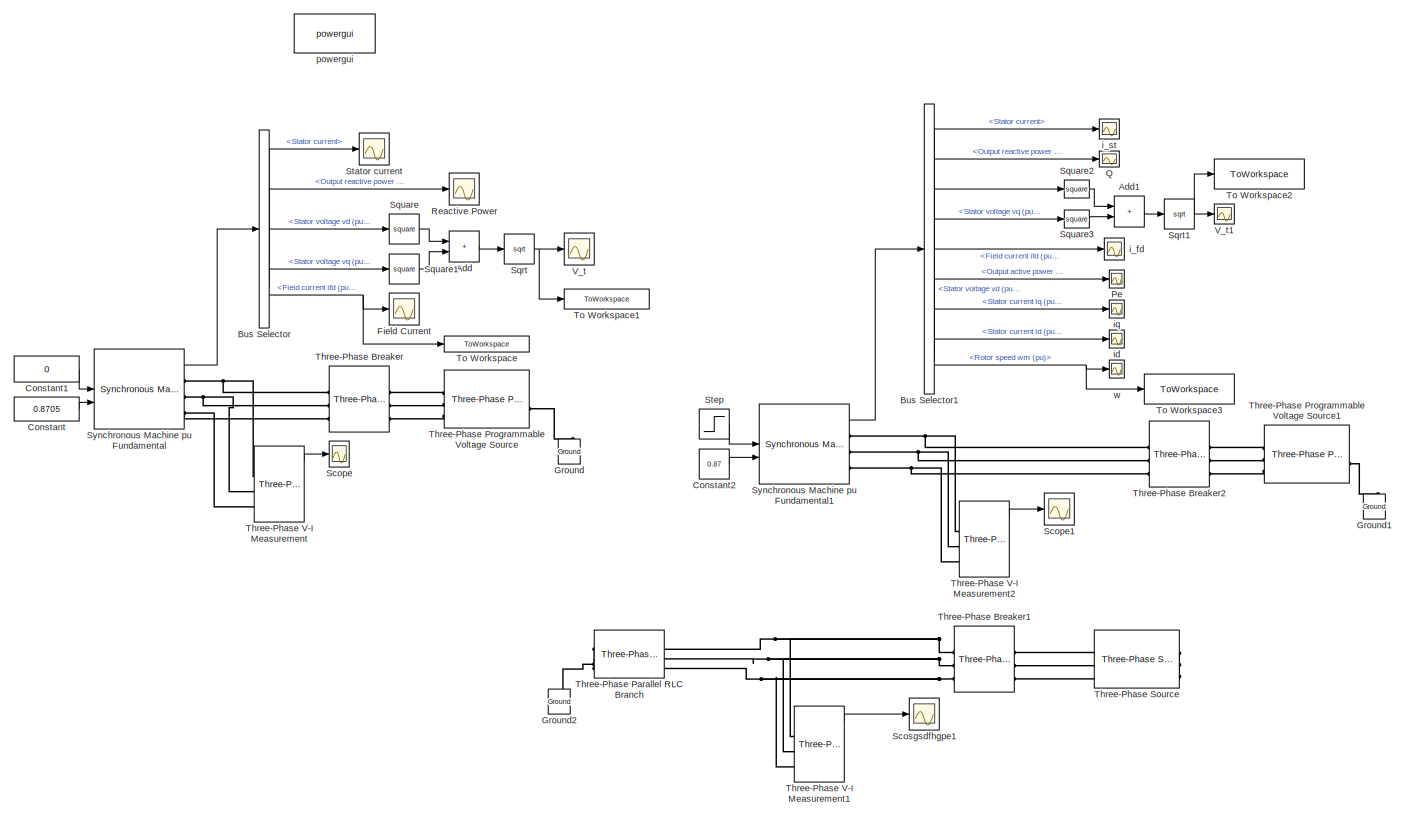
[diagram: root canvas - part 1/2, left side, full height]
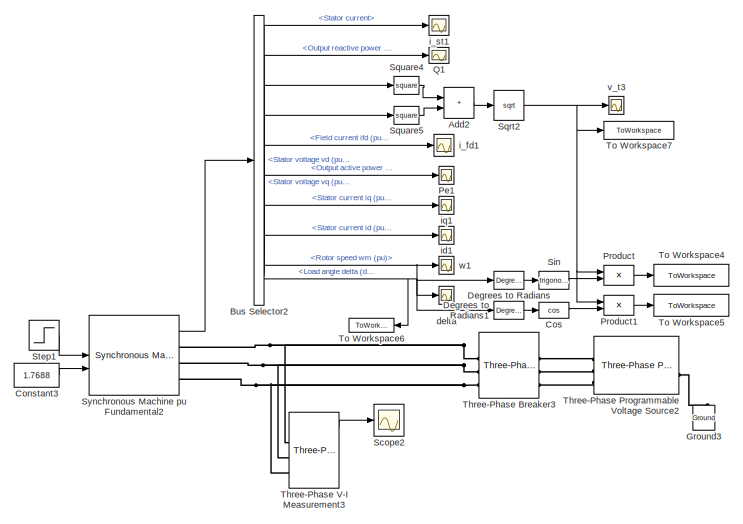
[diagram: root canvas - part 2/2, middle right region]
MODEL slx_2e14206b55f4
KIND model
CONFIG AbsTol = auto
CONFIG EnableMultiTasking = off
CONFIG FixedStep = auto
CONFIG MaxStep = 1e-4
CONFIG MinStep = auto
CONFIG RelTol = 1e-8
CONFIG SampleTimeConstraint = Unconstrained
CONFIG SolverName = VariableStepAuto
CONFIG StartTime = 0.0
CONFIG StopTime = 40
WORKSPACE source: mxarray member
WORKSPACE p_m = 0
WORKSPACE v_f = 0.8705
BLOCK [Sum] Add
  IconShape = rectangular
BLOCK [Sum] Add1
  IconShape = rectangular
BLOCK [Sum] Add2
  IconShape = rectangular
BLOCK [BusSelector] Bus Selector
  OutputSignals = Stator current,Output reactive power  Qeo (pu),dq0 components.Stator voltage  vd (pu),dq0 components.Stator voltage  vq (pu),dq0 components.Field current  ifd (pu)
BLOCK [BusSelector] Bus Selector1
  OutputSignals = Stator current,Output reactive power  Qeo (pu),dq0 components.Stator voltage  vd (pu),dq0 components.Stator voltage  vq (pu),dq0 components.Field current  ifd (pu),Output active power   Peo (pu),dq0 components.Stator current  iq (pu),dq0 components.Stator current  id (pu),Mechanical.Rotor speed  wm (pu)
BLOCK [BusSelector] Bus Selector2
  OutputSignals = Stator current,Output reactive power  Qeo (pu),dq0 components.Stator voltage  vd (pu),dq0 components.Stator voltage  vq (pu),dq0 components.Field current  ifd (pu),Output active power   Peo (pu),dq0 components.Stator current  iq (pu),dq0 components.Stator current  id (pu),Mechanical.Rotor speed  wm (pu),Load angle   delta  (deg)
BLOCK [Constant] Constant
  Value = 0.8705
BLOCK [Constant] Constant1
  Tag = p_m
  Value = 0
BLOCK [Constant] Constant2
  Value = 0.87
BLOCK [Constant] Constant3
  Value = 1.7688
BLOCK [Trigonometry] Cos
  Operator = cos
BLOCK [Reference] Degrees to Radians  REF=simulink_extras/Transformations/Degrees to
Radians
  SourceBlock = simulink_extras/Transformations/Degrees to\nRadians
  SourceType = DegreesToRadians
BLOCK [Reference] Degrees to Radians1  REF=simulink_extras/Transformations/Degrees to
Radians
  SourceBlock = simulink_extras/Transformations/Degrees to\nRadians
  SourceType = DegreesToRadians
BLOCK [Scope] Field Current
  ActiveDisplayYMaximum = 0.95670423972594421
  ActiveDisplayYMinimum = 0.95426093350087715
  DataLoggingVariableName = ScopeData4
  Floating = off
  GraphicalSettings = {"AxesScalingProperties":{"AlignXAxis":"Center","AlignYAxis":"Center","AutoScaleXAxisLimits":false,"AxesScaling":"Manual","AxesScalingNumUpdates":10,"ExpandOnly":true,"ScaleAxesLimitsAtStop":false,"XAxisDataRange":100,"YAxisDataRange":80},"DisplayProperties":{"ColorOrder":["auto","auto","auto","auto","auto","auto","auto","auto","auto","auto","auto","auto","auto","auto","auto","auto","auto","auto",...<+2042ch>  <repeated x3 — deduplicated; at blocks: Field Current, iq, iq1>
  MultipleDisplayCache = [{"MaxYLimMag":4.7811683232765558,"MaxYLimReal":0.95670423972594421,"MinYLimMag":0,"MinYLimReal":0.95426093350087715,"PlotAsMagnitudePhase":false,"ShowGrid":true,"ShowLegend":false,"Title":"%<SignalLabel>","YLabel":""}]
  NumInputPorts = 1
  ScopeFrameLocation = window
  WasSavedAsWebScope = on
  WindowPosition = [1921.000000,49.000000,1920.000000,1009.000000,]
BLOCK [Reference] Ground  REF=spsGroundLib/Ground
  LibrarySourceBlock = sps_lib/Utilities/Ground
  NameLocation = right
  SourceBlock = spsGroundLib/Ground
  SourceType = Ground
BLOCK [Reference] Ground1  REF=spsGroundLib/Ground
  LibrarySourceBlock = sps_lib/Utilities/Ground
  NameLocation = right
  SourceBlock = spsGroundLib/Ground
  SourceType = Ground
BLOCK [Reference] Ground2  REF=spsGroundLib/Ground
  LibrarySourceBlock = sps_lib/Utilities/Ground
  NameLocation = right
  SourceBlock = spsGroundLib/Ground
  SourceType = Ground
BLOCK [Reference] Ground3  REF=spsGroundLib/Ground
  LibrarySourceBlock = sps_lib/Utilities/Ground
  NameLocation = right
  SourceBlock = spsGroundLib/Ground
  SourceType = Ground
BLOCK [Scope] Pe
  ActiveDisplayYMaximum = 2375.0722359085885
  ActiveDisplayYMinimum = -266.63073278249573
  DataLoggingVariableName = ScopeData11
  Floating = off
  GraphicalSettings = {"Style":{"BackgroundColor":[0.12941176470588237,0.12941176470588237,0.12941176470588237],"AxesColor":[0.07058823529411765,0.07058823529411765,0.07058823529411765],"LabelsColor":[0.8509803921568627,0.8509803921568627,0.8509803921568627],"PreserveColors":false,"Visible":[true],"LineStyle":["-"],"LineWidth":[1.5],"BarWidth":[0.9],"LineColor":["auto"],"LineFaceAlpha":[1],"LineEdgeAlpha":[1],"Marker":...<+2047ch>
  MultipleDisplayCache = [{"MaxYLimMag":2375.0722359085885,"MaxYLimReal":2375.0722359085885,"MinYLimMag":0,"MinYLimReal":-266.63073278249573,"PlotAsMagnitudePhase":false,"ShowGrid":true,"ShowLegend":false,"Title":"%<SignalLabel>","YLabel":""}]
  NameLocation = right
  NumInputPorts = 1
  ScopeFrameLocation = window
  WasSavedAsWebScope = on
  WindowPosition = [-38.000000,34.000000,1600.000000,829.000000,]
BLOCK [Scope] Pe1
  ActiveDisplayYMaximum = 2375.0722359085885
  ActiveDisplayYMinimum = -266.63073278249573
  DataLoggingVariableName = ScopeData14
  Floating = off
  GraphicalSettings = {"Style":{"BackgroundColor":[0.12941176470588237,0.12941176470588237,0.12941176470588237],"AxesColor":[0.07058823529411765,0.07058823529411765,0.07058823529411765],"LabelsColor":[0.8509803921568627,0.8509803921568627,0.8509803921568627],"PreserveColors":false,"Visible":[true],"LineStyle":["-"],"LineWidth":[1.5],"BarWidth":[0.9],"LineColor":["auto"],"LineFaceAlpha":[1],"LineEdgeAlpha":[1],"Marker":...<+2047ch>
  MultipleDisplayCache = [{"MaxYLimMag":2375.0722359085885,"MaxYLimReal":2375.0722359085885,"MinYLimMag":0,"MinYLimReal":-266.63073278249573,"PlotAsMagnitudePhase":false,"ShowGrid":true,"ShowLegend":false,"Title":"%<SignalLabel>","YLabel":""}]
  NameLocation = right
  NumInputPorts = 1
  ScopeFrameLocation = window
  WasSavedAsWebScope = on
  WindowPosition = [-38.000000,34.000000,1600.000000,829.000000,]
BLOCK [Product] Product
BLOCK [Product] Product1
BLOCK [Scope] Q
  ActiveDisplayYMaximum = -0.29699694200105431
  ActiveDisplayYMinimum = -0.29769400843785104
  DataLoggingVariableName = ScopeData7
  Floating = off
  GraphicalSettings = {"AxesScalingProperties":{"AlignXAxis":"Center","AlignYAxis":"Center","AutoScaleXAxisLimits":false,"AxesScaling":"Manual","AxesScalingNumUpdates":10,"ExpandOnly":true,"ScaleAxesLimitsAtStop":false,"XAxisDataRange":100,"YAxisDataRange":80},"DisplayProperties":{"ColorOrder":["auto","auto","auto","auto","auto","auto","auto","auto","auto","auto","auto","auto","auto","auto","auto","auto","auto","auto",...<+2064ch>
  MultipleDisplayCache = [{"MaxYLimMag":9.7936959652295776,"MaxYLimReal":-0.29699694200105431,"MinYLimMag":0,"MinYLimReal":-0.29769400843785104,"PlotAsMagnitudePhase":false,"ShowGrid":true,"ShowLegend":false,"Title":"%<SignalLabel>","YLabel":""}]
  NameLocation = right
  NumInputPorts = 1
  ScopeFrameLocation = window
  WasSavedAsWebScope = on
  WindowPosition = [1.000000,49.000000,1600.000000,829.000000,]
BLOCK [Scope] Q1
  ActiveDisplayYMaximum = -0.29699694200105431
  ActiveDisplayYMinimum = -0.29769400843785104
  DataLoggingVariableName = ScopeData15
  Floating = off
  GraphicalSettings = {"AxesScalingProperties":{"AlignXAxis":"Center","AlignYAxis":"Center","AutoScaleXAxisLimits":false,"AxesScaling":"Manual","AxesScalingNumUpdates":10,"ExpandOnly":true,"ScaleAxesLimitsAtStop":false,"XAxisDataRange":100,"YAxisDataRange":80},"DisplayProperties":{"ColorOrder":["auto","auto","auto","auto","auto","auto","auto","auto","auto","auto","auto","auto","auto","auto","auto","auto","auto","auto",...<+2064ch>
  MultipleDisplayCache = [{"MaxYLimMag":9.7936959652295776,"MaxYLimReal":-0.29699694200105431,"MinYLimMag":0,"MinYLimReal":-0.29769400843785104,"PlotAsMagnitudePhase":false,"ShowGrid":true,"ShowLegend":false,"Title":"%<SignalLabel>","YLabel":""}]
  NameLocation = right
  NumInputPorts = 1
  ScopeFrameLocation = window
  WasSavedAsWebScope = on
  WindowPosition = [1.000000,49.000000,1600.000000,829.000000,]
BLOCK [Scope] Reactive Power
  ActiveDisplayYMaximum = -0.12338999766576593
  ActiveDisplayYMinimum = -0.1233902909232272
  DataLoggingVariableName = ScopeData3
  Floating = off
  GraphicalSettings = {"AxesScalingProperties":{"AlignXAxis":"Center","AlignYAxis":"Center","AutoScaleXAxisLimits":false,"AxesScaling":"Manual","AxesScalingNumUpdates":10,"ExpandOnly":true,"ScaleAxesLimitsAtStop":false,"XAxisDataRange":100,"YAxisDataRange":80},"DisplayProperties":{"ColorOrder":["auto","auto","auto","auto","auto","auto","auto","auto","auto","auto","auto","auto","auto","auto","auto","auto","auto","auto",...<+2060ch>
  MultipleDisplayCache = [{"MaxYLimMag":9.48701347407148,"MaxYLimReal":-0.12338999766576593,"MinYLimMag":0,"MinYLimReal":-0.1233902909232272,"PlotAsMagnitudePhase":false,"ShowGrid":true,"ShowLegend":false,"Title":"%<SignalLabel>","YLabel":""}]
  NumInputPorts = 1
  ScopeFrameLocation = window
  WasSavedAsWebScope = on
  WindowPosition = [0.000000,36.000000,1920.000000,1009.000000,]
BLOCK [Scope] Scope
  ActiveDisplayYMaximum = 1.2500642972287648
  ActiveDisplayYMinimum = -1.2502044389104019
  DataLoggingVariableName = ScopeData5
  Floating = off
  GraphicalSettings = {"Style":{"BackgroundColor":[0.12941176470588237,0.12941176470588237,0.12941176470588237],"AxesColor":[0.07058823529411765,0.07058823529411765,0.07058823529411765],"LabelsColor":[0.8509803921568627,0.8509803921568627,0.8509803921568627],"PreserveColors":false,"Visible":[true,true,true],"LineStyle":["-","-","-"],"LineWidth":[1.5,1.5,1.5],"BarWidth":[0.9,0.9,0.9],"LineColor":["auto","auto","auto"],"...<+2358ch>
  MultipleDisplayCache = [{"MaxYLimMag":1.2502044389104019,"MaxYLimReal":1.2500642972287648,"MinYLimMag":0,"MinYLimReal":-1.2502044389104019,"PlotAsMagnitudePhase":false,"ShowGrid":true,"ShowLegend":false,"Title":"%<SignalLabel>","YLabel":""}]
  NumInputPorts = 1
  ScopeFrameLocation = window
  WasSavedAsWebScope = on
  WindowPosition = [0.000000,36.000000,1920.000000,1009.000000,]
BLOCK [Scope] Scope1
  ActiveDisplayYMaximum = 0.99048701496862079
  ActiveDisplayYMinimum = -1.0713781429903637
  DataLoggingVariableName = ScopeData8
  Floating = off
  GraphicalSettings = {"Style":{"BackgroundColor":[0.12941176470588237,0.12941176470588237,0.12941176470588237],"AxesColor":[0.07058823529411765,0.07058823529411765,0.07058823529411765],"LabelsColor":[0.8509803921568627,0.8509803921568627,0.8509803921568627],"PreserveColors":false,"Visible":[true,true,true],"LineStyle":["-","-","-"],"LineWidth":[1.5,1.5,1.5],"BarWidth":[0.9,0.9,0.9],"LineColor":["auto","auto","auto"],"...<+2360ch>
  MultipleDisplayCache = [{"MaxYLimMag":1.9161922583158995,"MaxYLimReal":0.99048701496862079,"MinYLimMag":0,"MinYLimReal":-1.0713781429903637,"PlotAsMagnitudePhase":false,"ShowGrid":true,"ShowLegend":false,"Title":"%<SignalLabel>","YLabel":""}]
  NumInputPorts = 1
  ScopeFrameLocation = window
  WasSavedAsWebScope = on
  WindowPosition = [1921.000000,49.000000,1920.000000,1009.000000,]
BLOCK [Scope] Scope2
  ActiveDisplayYMaximum = 0.99048701496862079
  ActiveDisplayYMinimum = -1.0713781429903637
  DataLoggingVariableName = ScopeData17
  Floating = off
  GraphicalSettings = {"Style":{"BackgroundColor":[0.12941176470588237,0.12941176470588237,0.12941176470588237],"AxesColor":[0.07058823529411765,0.07058823529411765,0.07058823529411765],"LabelsColor":[0.8509803921568627,0.8509803921568627,0.8509803921568627],"PreserveColors":false,"Visible":[true,true,true],"LineStyle":["-","-","-"],"LineWidth":[1.5,1.5,1.5],"BarWidth":[0.9,0.9,0.9],"LineColor":["auto","auto","auto"],"...<+2360ch>
  MultipleDisplayCache = [{"MaxYLimMag":1.9161922583158995,"MaxYLimReal":0.99048701496862079,"MinYLimMag":0,"MinYLimReal":-1.0713781429903637,"PlotAsMagnitudePhase":false,"ShowGrid":true,"ShowLegend":false,"Title":"%<SignalLabel>","YLabel":""}]
  NumInputPorts = 1
  ScopeFrameLocation = window
  WasSavedAsWebScope = on
  WindowPosition = [1921.000000,49.000000,1920.000000,1009.000000,]
BLOCK [Scope] Scosgsdfhgpe1
  ActiveDisplayYMaximum = 1.1869510329971333
  ActiveDisplayYMinimum = -1.0092853712369843
  DataLoggingVariableName = ScopeData2
  Floating = off
  GraphicalSettings = {"Style":{"BackgroundColor":[0.12941176470588237,0.12941176470588237,0.12941176470588237],"AxesColor":[0.07058823529411765,0.07058823529411765,0.07058823529411765],"LabelsColor":[0.8509803921568627,0.8509803921568627,0.8509803921568627],"PreserveColors":false,"Visible":[true,true,true],"LineStyle":["-","-","-"],"LineWidth":[1.5,1.5,1.5],"BarWidth":[0.9,0.9,0.9],"LineColor":["auto","auto","auto"],"...<+2334ch>
  MultipleDisplayCache = [{"MaxYLimMag":10,"MaxYLimReal":1.1869510329971333,"MinYLimMag":0,"MinYLimReal":-1.0092853712369843,"PlotAsMagnitudePhase":false,"ShowGrid":true,"ShowLegend":false,"Title":"%<SignalLabel>","YLabel":""}]
  NumInputPorts = 1
  ScopeFrameLocation = window
  WasSavedAsWebScope = on
  WindowPosition = [680.000000,330.000000,560.000000,420.000000,]
BLOCK [Trigonometry] Sin
BLOCK [Sqrt] Sqrt
BLOCK [Sqrt] Sqrt1
BLOCK [Sqrt] Sqrt2
BLOCK [Math] Square
  Operator = square
BLOCK [Math] Square1
  Operator = square
BLOCK [Math] Square2
  Operator = square
BLOCK [Math] Square3
  Operator = square
BLOCK [Math] Square4
  Operator = square
BLOCK [Math] Square5
  Operator = square
BLOCK [Scope] Stator current
  ActiveDisplayYMaximum = 0.12350538497944295
  ActiveDisplayYMinimum = 0.12291954925426332
  Floating = off
  GraphicalSettings = {"AxesScalingProperties":{"AlignXAxis":"Center","AlignYAxis":"Center","AutoScaleXAxisLimits":false,"AxesScaling":"Manual","AxesScalingNumUpdates":10,"ExpandOnly":true,"ScaleAxesLimitsAtStop":false,"XAxisDataRange":100,"YAxisDataRange":80},"DisplayProperties":{"ColorOrder":["auto","auto","auto","auto","auto","auto","auto","auto","auto","auto","auto","auto","auto","auto","auto","auto","auto","auto",...<+2306ch>
  MultipleDisplayCache = [{"MaxYLimMag":13.411540514353046,"MaxYLimReal":0.12350538497944295,"MinYLimMag":0,"MinYLimReal":0.12291954925426332,"PlotAsMagnitudePhase":false,"ShowGrid":true,"ShowLegend":false,"Title":"%<SignalLabel>","YLabel":""}]
  NumInputPorts = 1
  ScopeFrameLocation = window
  WasSavedAsWebScope = on
  WindowPosition = [0.000000,36.000000,1920.000000,1009.000000,]
BLOCK [Step] Step
  After = 0
  Before = 0.6249
  SampleTime = 0
  Time = 25
BLOCK [Step] Step1
  After = 0
  Before = 0.8437
  SampleTime = 0
  Time = 25
BLOCK [Reference] Synchronous Machine pu Fundamental  REF=spsSynchronousMachinepuFundamentalLib/Synchronous Machine
pu Fundamental
  LibrarySourceBlock = sps_lib/Electrical Machines/Synchronous Machine\npu Fundamental
  SourceBlock = spsSynchronousMachinepuFundamentalLib/Synchronous Machine\npu Fundamental
  SourceType = Synchronous Machine
BLOCK [Reference] Synchronous Machine pu Fundamental1  REF=spsSynchronousMachinepuFundamentalLib/Synchronous Machine
pu Fundamental
  LibrarySourceBlock = sps_lib/Electrical Machines/Synchronous Machine\npu Fundamental
  SourceBlock = spsSynchronousMachinepuFundamentalLib/Synchronous Machine\npu Fundamental
  SourceType = Synchronous Machine
BLOCK [Reference] Synchronous Machine pu Fundamental2  REF=spsSynchronousMachinepuFundamentalLib/Synchronous Machine
pu Fundamental
  LibrarySourceBlock = sps_lib/Electrical Machines/Synchronous Machine\npu Fundamental
  SourceBlock = spsSynchronousMachinepuFundamentalLib/Synchronous Machine\npu Fundamental
  SourceType = Synchronous Machine
BLOCK [Reference] Three-Phase Breaker  REF=spsThreePhaseBreakerLib/Three-Phase Breaker
  LibrarySourceBlock = sps_lib/Power Grid Elements/Three-Phase Breaker
  SourceBlock = spsThreePhaseBreakerLib/Three-Phase Breaker
  SourceType = Three-Phase Breaker
BLOCK [Reference] Three-Phase Breaker1  REF=spsThreePhaseBreakerLib/Three-Phase Breaker
  LibrarySourceBlock = sps_lib/Power Grid Elements/Three-Phase Breaker
  SourceBlock = spsThreePhaseBreakerLib/Three-Phase Breaker
  SourceType = Three-Phase Breaker
BLOCK [Reference] Three-Phase Breaker2  REF=spsThreePhaseBreakerLib/Three-Phase Breaker
  LibrarySourceBlock = sps_lib/Power Grid Elements/Three-Phase Breaker
  SourceBlock = spsThreePhaseBreakerLib/Three-Phase Breaker
  SourceType = Three-Phase Breaker
BLOCK [Reference] Three-Phase Breaker3  REF=spsThreePhaseBreakerLib/Three-Phase Breaker
  LibrarySourceBlock = sps_lib/Power Grid Elements/Three-Phase Breaker
  SourceBlock = spsThreePhaseBreakerLib/Three-Phase Breaker
  SourceType = Three-Phase Breaker
BLOCK [Reference] Three-Phase Parallel RLC Branch  REF=spsThreePhaseParallelRLCBranchLib/Three-Phase
Parallel RLC Branch
  AttributesFormatString = \n
  LibrarySourceBlock = sps_lib/Passives/Three-Phase\nParallel RLC Branch
  SourceBlock = spsThreePhaseParallelRLCBranchLib/Three-Phase\nParallel RLC Branch
  SourceType = Three-Phase Parallel RLC Branch
BLOCK [Reference] Three-Phase Programmable Voltage Source  REF=spsThreePhaseProgrammableVoltageSourceLib/Three-Phase
Programmable
Voltage Source
  LibrarySourceBlock = sps_lib/Sources/Three-Phase\nProgrammable\nVoltage Source
  SourceBlock = spsThreePhaseProgrammableVoltageSourceLib/Three-Phase\nProgrammable\nVoltage Source
  SourceType = Three-Phase Programmable Voltage Source
BLOCK [Reference] Three-Phase Programmable Voltage Source1  REF=spsThreePhaseProgrammableVoltageSourceLib/Three-Phase
Programmable
Voltage Source
  LibrarySourceBlock = sps_lib/Sources/Three-Phase\nProgrammable\nVoltage Source
  SourceBlock = spsThreePhaseProgrammableVoltageSourceLib/Three-Phase\nProgrammable\nVoltage Source
  SourceType = Three-Phase Programmable Voltage Source
BLOCK [Reference] Three-Phase Programmable Voltage Source2  REF=spsThreePhaseProgrammableVoltageSourceLib/Three-Phase
Programmable
Voltage Source
  LibrarySourceBlock = sps_lib/Sources/Three-Phase\nProgrammable\nVoltage Source
  SourceBlock = spsThreePhaseProgrammableVoltageSourceLib/Three-Phase\nProgrammable\nVoltage Source
  SourceType = Three-Phase Programmable Voltage Source
BLOCK [Reference] Three-Phase Source  REF=spsThreePhaseSourceLib/Three-Phase Source
  LibrarySourceBlock = sps_lib/Sources/Three-Phase Source
  NameLocation = top
  SourceBlock = spsThreePhaseSourceLib/Three-Phase Source
  SourceType = Three-Phase Source
BLOCK [Reference] Three-Phase V-I Measurement  REF=spsThreePhaseVIMeasurementLib/Three-Phase
V-I Measurement
  LibrarySourceBlock = sps_lib/Sensors and Measurements/Three-Phase\nV-I Measurement
  SourceBlock = spsThreePhaseVIMeasurementLib/Three-Phase\nV-I Measurement
  SourceType = Three-Phase VI Measurement
BLOCK [Reference] Three-Phase V-I Measurement1  REF=spsThreePhaseVIMeasurementLib/Three-Phase
V-I Measurement
  LibrarySourceBlock = sps_lib/Sensors and Measurements/Three-Phase\nV-I Measurement
  SourceBlock = spsThreePhaseVIMeasurementLib/Three-Phase\nV-I Measurement
  SourceType = Three-Phase VI Measurement
BLOCK [Reference] Three-Phase V-I Measurement2  REF=spsThreePhaseVIMeasurementLib/Three-Phase
V-I Measurement
  LibrarySourceBlock = sps_lib/Sensors and Measurements/Three-Phase\nV-I Measurement
  SourceBlock = spsThreePhaseVIMeasurementLib/Three-Phase\nV-I Measurement
  SourceType = Three-Phase VI Measurement
BLOCK [Reference] Three-Phase V-I Measurement3  REF=spsThreePhaseVIMeasurementLib/Three-Phase
V-I Measurement
  LibrarySourceBlock = sps_lib/Sensors and Measurements/Three-Phase\nV-I Measurement
  SourceBlock = spsThreePhaseVIMeasurementLib/Three-Phase\nV-I Measurement
  SourceType = Three-Phase VI Measurement
BLOCK [ToWorkspace] To Workspace
  FixptAsFi = on
  MaxDataPoints = inf
  SampleTime = -1
  SaveFormat = Timeseries
  VariableName = i_fd
BLOCK [ToWorkspace] To Workspace1
  FixptAsFi = on
  MaxDataPoints = inf
  SampleTime = -1
  SaveFormat = Timeseries
  VariableName = v_t
BLOCK [ToWorkspace] To Workspace2
  FixptAsFi = on
  MaxDataPoints = inf
  SampleTime = -1
  SaveFormat = Timeseries
  VariableName = v_tq
BLOCK [ToWorkspace] To Workspace3
  FixptAsFi = on
  MaxDataPoints = inf
  SampleTime = -1
  SaveFormat = Timeseries
  VariableName = w
BLOCK [ToWorkspace] To Workspace4
  FixptAsFi = on
  MaxDataPoints = inf
  SampleTime = -1
  SaveFormat = Timeseries
  VariableName = vt_sen
BLOCK [ToWorkspace] To Workspace5
  FixptAsFi = on
  MaxDataPoints = inf
  SampleTime = -1
  SaveFormat = Timeseries
  VariableName = vt_cos
BLOCK [ToWorkspace] To Workspace6
  FixptAsFi = on
  MaxDataPoints = inf
  SampleTime = -1
  SaveFormat = Timeseries
  VariableName = delta
BLOCK [ToWorkspace] To Workspace7
  FixptAsFi = on
  MaxDataPoints = inf
  SampleTime = -1
  SaveFormat = Timeseries
  VariableName = vt_3
BLOCK [Scope] V_t
  ActiveDisplayYMaximum = 0.99738883556627056
  ActiveDisplayYMinimum = 0.96319114292580066
  DataLoggingVariableName = ScopeData1
  Floating = off
  GraphicalSettings = {"AxesScalingProperties":{"AlignXAxis":"Center","AlignYAxis":"Center","AutoScaleXAxisLimits":false,"AxesScaling":"Manual","AxesScalingNumUpdates":10,"ExpandOnly":true,"ScaleAxesLimitsAtStop":false,"XAxisDataRange":100,"YAxisDataRange":80},"DisplayProperties":{"ColorOrder":["auto","auto","auto","auto","auto","auto","auto","auto","auto","auto","auto","auto","auto","auto","auto","auto","auto","auto",...<+2036ch>
  MultipleDisplayCache = [{"MaxYLimMag":1.0326951871301133,"MaxYLimReal":0.99738883556627056,"MinYLimMag":0.70954147055033534,"MinYLimReal":0.96319114292580066,"PlotAsMagnitudePhase":false,"ShowGrid":true,"ShowLegend":false,"Title":"%<SignalLabel>","YLabel":""}]
  NumInputPorts = 1
  ScopeFrameLocation = window
  WasSavedAsWebScope = on
  WindowPosition = [1.000000,49.000000,1600.000000,829.000000,]
BLOCK [Scope] V_t1
  ActiveDisplayYMaximum = 1.0050082982054707
  ActiveDisplayYMinimum = 0.801437980897443
  DataLoggingVariableName = ScopeData10
  Floating = off
  GraphicalSettings = {"Style":{"BackgroundColor":[0.12941176470588237,0.12941176470588237,0.12941176470588237],"AxesColor":[0.07058823529411765,0.07058823529411765,0.07058823529411765],"LabelsColor":[0.8509803921568627,0.8509803921568627,0.8509803921568627],"PreserveColors":false,"Visible":[true],"LineStyle":["-"],"LineWidth":[1.5],"BarWidth":[0.9],"LineColor":["auto"],"LineFaceAlpha":[1],"LineEdgeAlpha":[1],"Marker":...<+1991ch>
  MultipleDisplayCache = [{"MaxYLimMag":18.139768905804917,"MaxYLimReal":1.0050082982054707,"MinYLimMag":0,"MinYLimReal":0.801437980897443,"PlotAsMagnitudePhase":false,"ShowGrid":true,"ShowLegend":false,"Title":"%<SignalLabel>","YLabel":""}]
  NameLocation = right
  NumInputPorts = 1
  ScopeFrameLocation = window
  WasSavedAsWebScope = on
  WindowPosition = [-1919.000000,316.000000,1920.000000,1009.000000,]
BLOCK [Scope] delta
  ActiveDisplayYMaximum = 22.113426742657516
  ActiveDisplayYMinimum = -4.0306303814893027
  DataLoggingVariableName = ScopeData18
  Floating = off
  GraphicalSettings = {"Style":{"BackgroundColor":[0.12941176470588237,0.12941176470588237,0.12941176470588237],"AxesColor":[0.07058823529411765,0.07058823529411765,0.07058823529411765],"LabelsColor":[0.8509803921568627,0.8509803921568627,0.8509803921568627],"PreserveColors":false,"Visible":[true],"LineStyle":["-"],"LineWidth":[1.5],"BarWidth":[0.9],"LineColor":["auto"],"LineFaceAlpha":[1],"LineEdgeAlpha":[1],"Marker":...<+2035ch>
  MultipleDisplayCache = [{"MaxYLimMag":111.7988621787143,"MaxYLimReal":22.113426742657516,"MinYLimMag":0,"MinYLimReal":-4.0306303814893027,"PlotAsMagnitudePhase":false,"ShowGrid":true,"ShowLegend":false,"Title":"%<SignalLabel>","YLabel":""}]
  NameLocation = right
  NumInputPorts = 1
  ScopeFrameLocation = window
  WasSavedAsWebScope = on
  WindowPosition = [-1918.000000,426.000000,1600.000000,429.000000,]
BLOCK [Scope] i_fd
  ActiveDisplayYMaximum = 1.1986921425905557
  ActiveDisplayYMinimum = 0.486166253546517
  DataLoggingVariableName = ScopeData6
  Floating = off
  GraphicalSettings = {"AxesScalingProperties":{"AlignXAxis":"Center","AlignYAxis":"Center","AutoScaleXAxisLimits":false,"AxesScaling":"Manual","AxesScalingNumUpdates":10,"ExpandOnly":true,"ScaleAxesLimitsAtStop":false,"XAxisDataRange":100,"YAxisDataRange":80},"DisplayProperties":{"ColorOrder":["auto","auto","auto","auto","auto","auto","auto","auto","auto","auto","auto","auto","auto","auto","auto","auto","auto","auto",...<+2080ch>
  MultipleDisplayCache = [{"MaxYLimMag":4.7047719140770932,"MaxYLimReal":1.1986921425905557,"MinYLimMag":0,"MinYLimReal":0.486166253546517,"PlotAsMagnitudePhase":false,"ShowGrid":true,"ShowLegend":false,"Title":"%<SignalLabel>","YLabel":""}]
  NameLocation = right
  NumInputPorts = 1
  ScopeFrameLocation = window
  WasSavedAsWebScope = on
  WindowPosition = [1921.000000,49.000000,1920.000000,1009.000000,]
BLOCK [Scope] i_fd1
  ActiveDisplayYMaximum = 1.1986921425905557
  ActiveDisplayYMinimum = 0.486166253546517
  DataLoggingVariableName = ScopeData19
  Floating = off
  GraphicalSettings = {"AxesScalingProperties":{"AlignXAxis":"Center","AlignYAxis":"Center","AutoScaleXAxisLimits":false,"AxesScaling":"Manual","AxesScalingNumUpdates":10,"ExpandOnly":true,"ScaleAxesLimitsAtStop":false,"XAxisDataRange":100,"YAxisDataRange":80},"DisplayProperties":{"ColorOrder":["auto","auto","auto","auto","auto","auto","auto","auto","auto","auto","auto","auto","auto","auto","auto","auto","auto","auto",...<+2080ch>
  MultipleDisplayCache = [{"MaxYLimMag":4.7047719140770932,"MaxYLimReal":1.1986921425905557,"MinYLimMag":0,"MinYLimReal":0.486166253546517,"PlotAsMagnitudePhase":false,"ShowGrid":true,"ShowLegend":false,"Title":"%<SignalLabel>","YLabel":""}]
  NameLocation = right
  NumInputPorts = 1
  ScopeFrameLocation = window
  WasSavedAsWebScope = on
  WindowPosition = [1921.000000,49.000000,1920.000000,1009.000000,]
BLOCK [Scope] i_st
  ActiveDisplayYMaximum = 0.12575316014958465
  ActiveDisplayYMinimum = 0.11664480033906652
  DataLoggingVariableName = ScopeData9
  Floating = off
  GraphicalSettings = {"AxesScalingProperties":{"AlignXAxis":"Center","AlignYAxis":"Center","AutoScaleXAxisLimits":false,"AxesScaling":"Manual","AxesScalingNumUpdates":10,"ExpandOnly":true,"ScaleAxesLimitsAtStop":false,"XAxisDataRange":100,"YAxisDataRange":80},"DisplayProperties":{"ColorOrder":["auto","auto","auto","auto","auto","auto","auto","auto","auto","auto","auto","auto","auto","auto","auto","auto","auto","auto",...<+2304ch>
  MultipleDisplayCache = [{"MaxYLimMag":13.381170707280678,"MaxYLimReal":0.12575316014958465,"MinYLimMag":0,"MinYLimReal":0.11664480033906652,"PlotAsMagnitudePhase":false,"ShowGrid":true,"ShowLegend":false,"Title":"%<SignalLabel>","YLabel":""}]
  NameLocation = right
  NumInputPorts = 1
  ScopeFrameLocation = window
  WasSavedAsWebScope = on
  WindowPosition = [1921.000000,49.000000,1920.000000,1009.000000,]
BLOCK [Scope] i_st1
  ActiveDisplayYMaximum = 0.12575316014958465
  ActiveDisplayYMinimum = 0.11664480033906652
  DataLoggingVariableName = ScopeData20
  Floating = off
  GraphicalSettings = {"AxesScalingProperties":{"AlignXAxis":"Center","AlignYAxis":"Center","AutoScaleXAxisLimits":false,"AxesScaling":"Manual","AxesScalingNumUpdates":10,"ExpandOnly":true,"ScaleAxesLimitsAtStop":false,"XAxisDataRange":100,"YAxisDataRange":80},"DisplayProperties":{"ColorOrder":["auto","auto","auto","auto","auto","auto","auto","auto","auto","auto","auto","auto","auto","auto","auto","auto","auto","auto",...<+2304ch>
  MultipleDisplayCache = [{"MaxYLimMag":13.381170707280678,"MaxYLimReal":0.12575316014958465,"MinYLimMag":0,"MinYLimReal":0.11664480033906652,"PlotAsMagnitudePhase":false,"ShowGrid":true,"ShowLegend":false,"Title":"%<SignalLabel>","YLabel":""}]
  NameLocation = right
  NumInputPorts = 1
  ScopeFrameLocation = window
  WasSavedAsWebScope = on
  WindowPosition = [1921.000000,49.000000,1920.000000,1009.000000,]
BLOCK [Scope] id
  ActiveDisplayYMaximum = 9.7889132148593134
  ActiveDisplayYMinimum = -4.1747274480528285
  DataLoggingVariableName = ScopeData13
  Floating = off
  GraphicalSettings = {"Style":{"BackgroundColor":[0.12941176470588237,0.12941176470588237,0.12941176470588237],"AxesColor":[0.07058823529411765,0.07058823529411765,0.07058823529411765],"LabelsColor":[0.8509803921568627,0.8509803921568627,0.8509803921568627],"PreserveColors":false,"Visible":[true],"LineStyle":["-"],"LineWidth":[1.5],"BarWidth":[0.9],"LineColor":["auto"],"LineFaceAlpha":[1],"LineEdgeAlpha":[1],"Marker":...<+2031ch>
  MultipleDisplayCache = [{"MaxYLimMag":9.7889132148593134,"MaxYLimReal":9.7889132148593134,"MinYLimMag":0,"MinYLimReal":-4.1747274480528285,"PlotAsMagnitudePhase":false,"ShowGrid":true,"ShowLegend":false,"Title":"%<SignalLabel>","YLabel":""}]
  NameLocation = right
  NumInputPorts = 1
  ScopeFrameLocation = window
  WasSavedAsWebScope = on
  WindowPosition = [1.000000,49.000000,1600.000000,829.000000,]
BLOCK [Scope] id1
  ActiveDisplayYMaximum = 9.7889132148593134
  ActiveDisplayYMinimum = -4.1747274480528285
  DataLoggingVariableName = ScopeData21
  Floating = off
  GraphicalSettings = {"Style":{"BackgroundColor":[0.12941176470588237,0.12941176470588237,0.12941176470588237],"AxesColor":[0.07058823529411765,0.07058823529411765,0.07058823529411765],"LabelsColor":[0.8509803921568627,0.8509803921568627,0.8509803921568627],"PreserveColors":false,"Visible":[true],"LineStyle":["-"],"LineWidth":[1.5],"BarWidth":[0.9],"LineColor":["auto"],"LineFaceAlpha":[1],"LineEdgeAlpha":[1],"Marker":...<+2031ch>
  MultipleDisplayCache = [{"MaxYLimMag":9.7889132148593134,"MaxYLimReal":9.7889132148593134,"MinYLimMag":0,"MinYLimReal":-4.1747274480528285,"PlotAsMagnitudePhase":false,"ShowGrid":true,"ShowLegend":false,"Title":"%<SignalLabel>","YLabel":""}]
  NameLocation = right
  NumInputPorts = 1
  ScopeFrameLocation = window
  WasSavedAsWebScope = on
  WindowPosition = [1.000000,49.000000,1600.000000,829.000000,]
BLOCK [Scope] iq
  ActiveDisplayYMaximum = 0.66661087982942235
  ActiveDisplayYMinimum = 0.66579649034002775
  DataLoggingVariableName = ScopeData12
  Floating = off
  MultipleDisplayCache = [{"MaxYLimMag":10.273298076439351,"MaxYLimReal":0.66661087982942235,"MinYLimMag":0,"MinYLimReal":0.66579649034002775,"PlotAsMagnitudePhase":false,"ShowGrid":true,"ShowLegend":false,"Title":"%<SignalLabel>","YLabel":""}]
  NameLocation = right
  NumInputPorts = 1
  ScopeFrameLocation = window
  WasSavedAsWebScope = on
  WindowPosition = [1.000000,49.000000,1600.000000,829.000000,]
BLOCK [Scope] iq1
  ActiveDisplayYMaximum = 0.57311725016747339
  ActiveDisplayYMinimum = 0.57285257358033792
  DataLoggingVariableName = ScopeData22
  Floating = off
  MultipleDisplayCache = [{"MaxYLimMag":12.291516102485271,"MaxYLimReal":0.57311725016747339,"MinYLimMag":0,"MinYLimReal":0.57285257358033792,"PlotAsMagnitudePhase":false,"ShowGrid":true,"ShowLegend":false,"Title":"%<SignalLabel>","YLabel":""}]
  NameLocation = right
  NumInputPorts = 1
  ScopeFrameLocation = window
  WasSavedAsWebScope = on
  WindowPosition = [1.000000,49.000000,1600.000000,829.000000,]
BLOCK [Reference] powergui  REF=sps_lib/powergui
  LibrarySourceBlock = sps_lib/powergui
  Priority = 1
  SourceBlock = sps_lib/powergui
  SourceType = PSB option menu block
BLOCK [Scope] v_t3
  ActiveDisplayYMaximum = 1.8559591573872605
  ActiveDisplayYMinimum = 0.90273462770937341
  DataLoggingVariableName = ScopeData24
  Floating = off
  GraphicalSettings = {"Style":{"BackgroundColor":[0.12941176470588237,0.12941176470588237,0.12941176470588237],"AxesColor":[0.07058823529411765,0.07058823529411765,0.07058823529411765],"LabelsColor":[0.8509803921568627,0.8509803921568627,0.8509803921568627],"PreserveColors":false,"Visible":[true],"LineStyle":["-"],"LineWidth":[1.5],"BarWidth":[0.9],"LineColor":["auto"],"LineFaceAlpha":[1],"LineEdgeAlpha":[1],"Marker":...<+2027ch>
  MultipleDisplayCache = [{"MaxYLimMag":1.8559591573872605,"MaxYLimReal":1.8559591573872605,"MinYLimMag":0.90273462770937341,"MinYLimReal":0.90273462770937341,"PlotAsMagnitudePhase":false,"ShowGrid":true,"ShowLegend":false,"Title":"%<SignalLabel>","YLabel":""}]
  NameLocation = right
  NumInputPorts = 1
  ScopeFrameLocation = window
  WasSavedAsWebScope = on
  WindowPosition = [-689.000000,-158.000000,1920.000000,1009.000000,]
BLOCK [Scope] w
  ActiveDisplayYMaximum = 1.0000970383872483
  ActiveDisplayYMinimum = 0.99208571695671466
  DataLoggingVariableName = ScopeData16
  Floating = off
  GraphicalSettings = {"Style":{"BackgroundColor":[0.12941176470588237,0.12941176470588237,0.12941176470588237],"AxesColor":[0.07058823529411765,0.07058823529411765,0.07058823529411765],"LabelsColor":[0.8509803921568627,0.8509803921568627,0.8509803921568627],"PreserveColors":false,"Visible":[true],"LineStyle":["-"],"LineWidth":[1.5],"BarWidth":[0.9],"LineColor":["auto"],"LineFaceAlpha":[1],"LineEdgeAlpha":[1],"Marker":...<+2059ch>
  MultipleDisplayCache = [{"MaxYLimMag":1.019450664645781,"MaxYLimReal":1.0000970383872483,"MinYLimMag":0.97443158042508216,"MinYLimReal":0.99208571695671466,"PlotAsMagnitudePhase":false,"ShowGrid":true,"ShowLegend":false,"Title":"%<SignalLabel>","YLabel":""}]
  NameLocation = right
  NumInputPorts = 1
  ScopeFrameLocation = window
  WasSavedAsWebScope = on
  WindowPosition = [-1753.000000,741.000000,1600.000000,429.000000,]
BLOCK [Scope] w1
  ActiveDisplayYMaximum = 1.0334828110593048
  ActiveDisplayYMinimum = 0.959405918435756
  DataLoggingVariableName = ScopeData23
  Floating = off
  GraphicalSettings = {"Style":{"BackgroundColor":[0.12941176470588237,0.12941176470588237,0.12941176470588237],"AxesColor":[0.07058823529411765,0.07058823529411765,0.07058823529411765],"LabelsColor":[0.8509803921568627,0.8509803921568627,0.8509803921568627],"PreserveColors":false,"Visible":[true],"LineStyle":["-"],"LineWidth":[1.5],"BarWidth":[0.9],"LineColor":["auto"],"LineFaceAlpha":[1],"LineEdgeAlpha":[1],"Marker":...<+2057ch>
  MultipleDisplayCache = [{"MaxYLimMag":1.0334828110593048,"MaxYLimReal":1.0334828110593048,"MinYLimMag":0.959405918435756,"MinYLimReal":0.959405918435756,"PlotAsMagnitudePhase":false,"ShowGrid":true,"ShowLegend":false,"Title":"%<SignalLabel>","YLabel":""}]
  NameLocation = right
  NumInputPorts = 1
  ScopeFrameLocation = window
  WasSavedAsWebScope = on
  WindowPosition = [-1918.000000,426.000000,1600.000000,429.000000,]
LINE Add1:1 -> Sqrt1:1
LINE Add2:1 -> Sqrt2:1
LINE Add:1 -> Sqrt:1
LINE Bus Selector1:1 -> i_st:1
LINE Bus Selector1:2 -> Q:1
LINE Bus Selector1:3 -> Square2:1
LINE Bus Selector1:4 -> Square3:1
LINE Bus Selector1:5 -> i_fd:1
LINE Bus Selector1:6 -> Pe:1
LINE Bus Selector1:7 -> iq:1
LINE Bus Selector1:8 -> id:1
NET Bus Selector1:9 -> To Workspace3:1, w:1
LINE Bus Selector2:1 -> i_st1:1
NET Bus Selector2:10 -> Degrees to Radians1:1, Degrees to Radians:1, To Workspace6:1, delta:1
LINE Bus Selector2:2 -> Q1:1
LINE Bus Selector2:3 -> Square4:1
LINE Bus Selector2:4 -> Square5:1
LINE Bus Selector2:5 -> i_fd1:1
LINE Bus Selector2:6 -> Pe1:1
LINE Bus Selector2:7 -> iq1:1
LINE Bus Selector2:8 -> id1:1
LINE Bus Selector2:9 -> w1:1
LINE Bus Selector:1 -> Stator current:1
LINE Bus Selector:2 -> Reactive Power:1
LINE Bus Selector:3 -> Square:1
LINE Bus Selector:4 -> Square1:1
NET Bus Selector:5 -> Field Current:1, To Workspace:1
LINE Constant1:1 -> Synchronous Machine pu Fundamental:1
LINE Constant2:1 -> Synchronous Machine pu Fundamental1:2
LINE Constant3:1 -> Synchronous Machine pu Fundamental2:2
LINE Constant:1 -> Synchronous Machine pu Fundamental:2
LINE Cos:1 -> Product1:2
LINE Degrees to Radians1:1 -> Cos:1
LINE Degrees to Radians:1 -> Sin:1
LINE Product1:1 -> To Workspace5:1
LINE Product:1 -> To Workspace4:1
LINE Sin:1 -> Product:2
NET Sqrt1:1 -> To Workspace2:1, V_t1:1
NET Sqrt2:1 -> Product1:1, Product:1, To Workspace7:1, v_t3:1
NET Sqrt:1 -> To Workspace1:1, V_t:1
LINE Square1:1 -> Add:2
LINE Square2:1 -> Add1:1
LINE Square3:1 -> Add1:2
LINE Square4:1 -> Add2:1
LINE Square5:1 -> Add2:2
LINE Square:1 -> Add:1
LINE Step1:1 -> Synchronous Machine pu Fundamental2:1
LINE Step:1 -> Synchronous Machine pu Fundamental1:1
LINE Synchronous Machine pu Fundamental1:1 -> Bus Selector1:1
LINE Synchronous Machine pu Fundamental2:1 -> Bus Selector2:1
LINE Synchronous Machine pu Fundamental:1 -> Bus Selector:1
LINE Three-Phase V-I Measurement1:1 -> Scosgsdfhgpe1:1
LINE Three-Phase V-I Measurement2:1 -> Scope1:1
LINE Three-Phase V-I Measurement3:1 -> Scope2:1
LINE Three-Phase V-I Measurement:1 -> Scope:1
PLINE Ground1:LConn1 -- Three-Phase Programmable Voltage Source1:LConn1
PNET net1: Ground2:LConn1 -- Three-Phase Parallel RLC Branch:LConn1 -- Three-Phase Parallel RLC Branch:LConn2 -- Three-Phase Parallel RLC Branch:LConn3
PLINE Ground3:LConn1 -- Three-Phase Programmable Voltage Source2:LConn1
PLINE Ground:LConn1 -- Three-Phase Programmable Voltage Source:LConn1
PNET net2: Synchronous Machine pu Fundamental1:RConn1 -- Three-Phase Breaker2:LConn1 -- Three-Phase V-I Measurement2:LConn1
PNET net3: Synchronous Machine pu Fundamental1:RConn2 -- Three-Phase Breaker2:LConn2 -- Three-Phase V-I Measurement2:LConn2
PNET net4: Synchronous Machine pu Fundamental1:RConn3 -- Three-Phase Breaker2:LConn3 -- Three-Phase V-I Measurement2:LConn3
PNET net5: Synchronous Machine pu Fundamental2:RConn1 -- Three-Phase Breaker3:LConn1 -- Three-Phase V-I Measurement3:LConn1
PNET net6: Synchronous Machine pu Fundamental2:RConn2 -- Three-Phase Breaker3:LConn2 -- Three-Phase V-I Measurement3:LConn2
PNET net7: Synchronous Machine pu Fundamental2:RConn3 -- Three-Phase Breaker3:LConn3 -- Three-Phase V-I Measurement3:LConn3
PNET net8: Synchronous Machine pu Fundamental:RConn1 -- Three-Phase Breaker:LConn1 -- Three-Phase V-I Measurement:LConn1
PNET net9: Synchronous Machine pu Fundamental:RConn2 -- Three-Phase Breaker:LConn2 -- Three-Phase V-I Measurement:LConn2
PNET net10: Synchronous Machine pu Fundamental:RConn3 -- Three-Phase Breaker:LConn3 -- Three-Phase V-I Measurement:LConn3
PNET net11: Three-Phase Breaker1:LConn1 -- Three-Phase Parallel RLC Branch:RConn1 -- Three-Phase V-I Measurement1:LConn1
PNET net12: Three-Phase Breaker1:LConn2 -- Three-Phase Parallel RLC Branch:RConn2 -- Three-Phase V-I Measurement1:LConn2
PNET net13: Three-Phase Breaker1:LConn3 -- Three-Phase Parallel RLC Branch:RConn3 -- Three-Phase V-I Measurement1:LConn3
PLINE Three-Phase Breaker1:RConn1 -- Three-Phase Source:RConn3
PLINE Three-Phase Breaker1:RConn2 -- Three-Phase Source:RConn2
PLINE Three-Phase Breaker1:RConn3 -- Three-Phase Source:RConn1
PLINE Three-Phase Breaker2:RConn1 -- Three-Phase Programmable Voltage Source1:RConn1
PLINE Three-Phase Breaker2:RConn2 -- Three-Phase Programmable Voltage Source1:RConn2
PLINE Three-Phase Breaker2:RConn3 -- Three-Phase Programmable Voltage Source1:RConn3
PLINE Three-Phase Breaker3:RConn1 -- Three-Phase Programmable Voltage Source2:RConn1
PLINE Three-Phase Breaker3:RConn2 -- Three-Phase Programmable Voltage Source2:RConn2
PLINE Three-Phase Breaker3:RConn3 -- Three-Phase Programmable Voltage Source2:RConn3
PLINE Three-Phase Breaker:RConn1 -- Three-Phase Programmable Voltage Source:RConn1
PLINE Three-Phase Breaker:RConn2 -- Three-Phase Programmable Voltage Source:RConn2
PLINE Three-Phase Breaker:RConn3 -- Three-Phase Programmable Voltage Source:RConn3
note: NET lines group one-source signal fan-out (src -> all destinations, sorted); 1:1 wires keep LINE; PNET lines group multi-terminal physical nets as a canonical sorted terminal list (undirected conserving connections); 2-terminal nets keep the pairwise PLINE form
